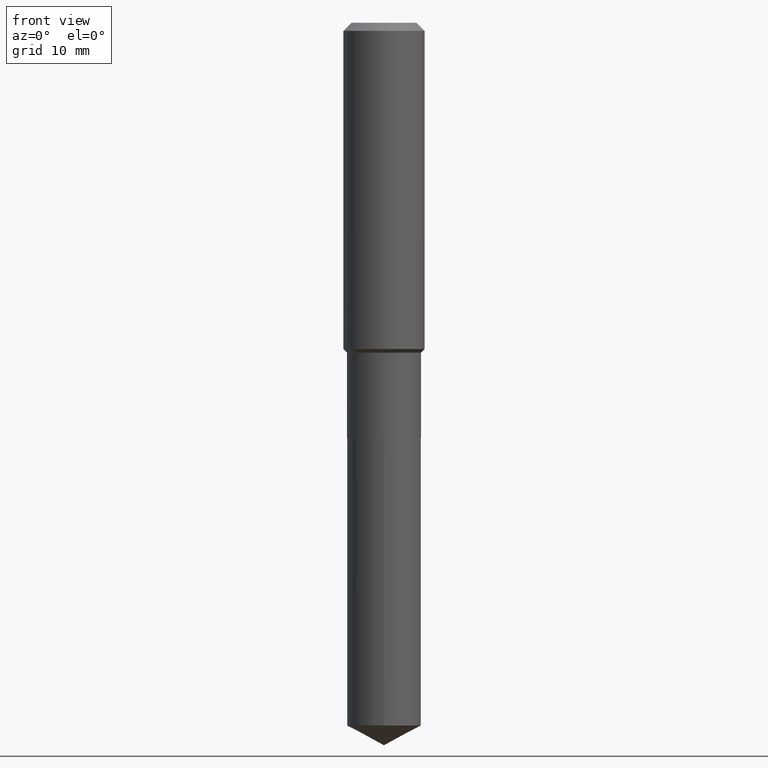
[diagram: clean part render]
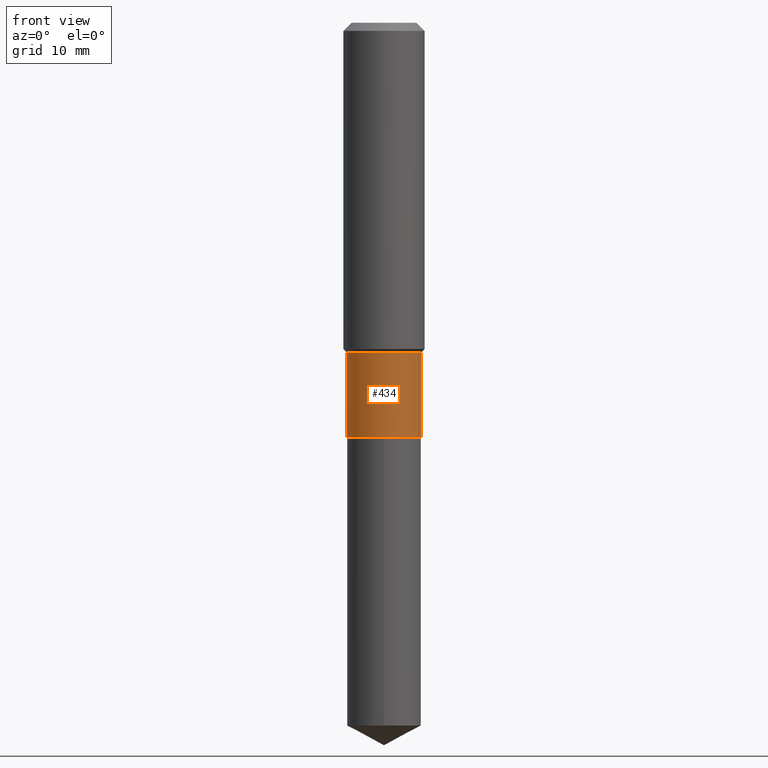
[diagram: same view with one face highlighted and labeled with its STEP entity id]
A machine part, front view. The second image highlights one B-rep face of the part: STEP entity #434.
In plain terms, the highlighted cylindrical surface (partial cylindrical patch) has radius 4.5644 mm, axis along (-0, 0, 1).
Its self-contained STEP definition (entity closure, byte-faithful):
#12 = CARTESIAN_POINT ( 'NONE',  ( 0.1796999999999999986, -8.281095439468167762E-15, -2.012399999999999967 ) ) ;
#31 = DIRECTION ( 'NONE',  ( -2.445468806185136597E-29, 3.491481338843145583E-15, 1.000000000000000000 ) ) ;
#35 = CIRCLE ( 'NONE', #56, 0.1796999999999999986 ) ;
#37 = DIRECTION ( 'NONE',  ( -2.445468806185136597E-29, 3.491481338843145583E-15, 1.000000000000000000 ) ) ;
#56 = AXIS2_PLACEMENT_3D ( 'NONE', #71, #31, #299 ) ;
#65 = CARTESIAN_POINT ( 'NONE',  ( -0.1796999999999999709, -5.028770001789819555E-15, -1.599599999999999467 ) ) ;
#71 = CARTESIAN_POINT ( 'NONE',  ( 4.921261425566968280E-29, -7.026257046287946031E-15, -2.012399999999999967 ) ) ;
#77 = CARTESIAN_POINT ( 'NONE',  ( 0.1796999999999999709, -6.839811942793715251E-15, -1.599599999999999467 ) ) ;
#78 = VERTEX_POINT ( 'NONE', #77 ) ;
#100 = EDGE_CURVE ( 'NONE', #209, #306, #464, .T. ) ;
#138 = AXIS2_PLACEMENT_3D ( 'NONE', #227, #37, #192 ) ;
#140 = EDGE_CURVE ( 'NONE', #306, #78, #208, .T. ) ;
#187 = LINE ( 'NONE', #338, #470 ) ;
#192 = DIRECTION ( 'NONE',  ( 1.000000000000000000, -6.982962677686265922E-15, 4.876176775795935232E-29 ) ) ;
#197 = DIRECTION ( 'NONE',  ( 1.000000000000000000, -6.982962677686263555E-15, 0.000000000000000000 ) ) ;
#199 = DIRECTION ( 'NONE',  ( -2.445468806185136877E-29, 3.491481338843145188E-15, 1.000000000000000000 ) ) ;
#208 = CIRCLE ( 'NONE', #217, 0.1796999999999999709 ) ;
#209 = VERTEX_POINT ( 'NONE', #247 ) ;
#213 = ORIENTED_EDGE ( 'NONE', *, *, #319, .T. ) ;
#217 = AXIS2_PLACEMENT_3D ( 'NONE', #304, #315, #197 ) ;
#221 = DIRECTION ( 'NONE',  ( -2.445468806185136877E-29, 3.491481338843145188E-15, 1.000000000000000000 ) ) ;
#227 = CARTESIAN_POINT ( 'NONE',  ( 0.000000000000000000, 0.000000000000000000, 0.000000000000000000 ) ) ;
#247 = CARTESIAN_POINT ( 'NONE',  ( -0.1796999999999999986, -5.028770001789819555E-15, -2.012399999999999967 ) ) ;
#264 = VERTEX_POINT ( 'NONE', #12 ) ;
#276 = CARTESIAN_POINT ( 'NONE',  ( -0.1796999999999999986, 1.276845296160900024E-15, -8.839326357188065585E-30 ) ) ;
#299 = DIRECTION ( 'NONE',  ( 1.000000000000000000, -6.982962677686267499E-15, 0.000000000000000000 ) ) ;
#304 = CARTESIAN_POINT ( 'NONE',  ( 3.911771902373742968E-29, -5.584973549613493521E-15, -1.599599999999999467 ) ) ;
#306 = VERTEX_POINT ( 'NONE', #65 ) ;
#315 = DIRECTION ( 'NONE',  ( -2.445468806185136597E-29, 3.491481338843145583E-15, 1.000000000000000000 ) ) ;
#319 = EDGE_CURVE ( 'NONE', #209, #264, #35, .T. ) ;
#338 = CARTESIAN_POINT ( 'NONE',  ( 0.1796999999999999986, -1.254838393180221928E-15, 8.762489666105295644E-30 ) ) ;
#339 = ORIENTED_EDGE ( 'NONE', *, *, #140, .F. ) ;
#354 = EDGE_CURVE ( 'NONE', #264, #78, #187, .T. ) ;
#355 = EDGE_LOOP ( 'NONE', ( #419, #213, #373, #339 ) ) ;
#373 = ORIENTED_EDGE ( 'NONE', *, *, #354, .T. ) ;
#417 = CYLINDRICAL_SURFACE ( 'NONE', #138, 0.1796999999999999986 ) ;
#419 = ORIENTED_EDGE ( 'NONE', *, *, #100, .F. ) ;
#420 = FACE_OUTER_BOUND ( 'NONE', #355, .T. ) ;
#434 = ADVANCED_FACE ( 'NONE', ( #420 ), #417, .T. ) ;
#464 = LINE ( 'NONE', #276, #473 ) ;
#470 = VECTOR ( 'NONE', #221, 39.37007874015748143 ) ;
#473 = VECTOR ( 'NONE', #199, 39.37007874015748143 ) ;